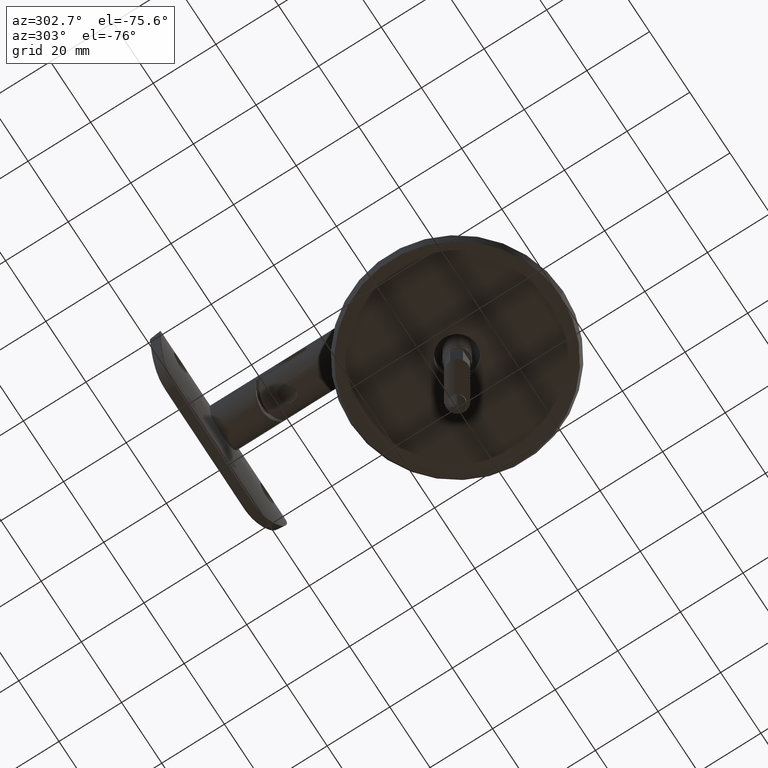
[diagram: clean part render]
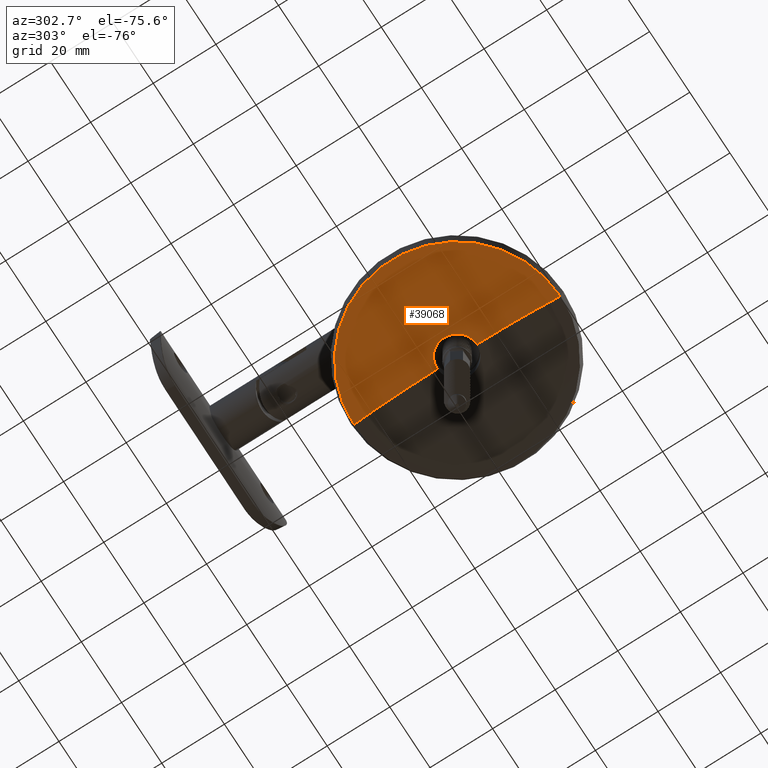
[diagram: same view with one face highlighted and labeled with its STEP entity id]
A machine part, auxiliary view. The second image highlights one B-rep face of the part: STEP entity #39068.
In plain terms, the highlighted toroidal blend (fillet) surface has major radius 6.25 mm and minor (blend) radius 91.8679 mm.
Its self-contained STEP definition (entity closure, byte-faithful):
#534 = DIRECTION ( 'NONE',  ( 0.000000000000000000, 0.000000000000000000, -1.000000000000000000 ) ) ;
#828 = DIRECTION ( 'NONE',  ( -1.224646799147353207E-16, 0.000000000000000000, -1.000000000000000000 ) ) ;
#911 = EDGE_CURVE ( 'NONE', #19195, #3617, #14880, .T. ) ;
#1289 = CARTESIAN_POINT ( 'NONE',  ( 7.654042494670957606E-16, -87.86785809411674109, 6.250000000000000000 ) ) ;
#1321 = DIRECTION ( 'NONE',  ( 0.000000000000000000, 0.000000000000000000, -1.000000000000000000 ) ) ;
#2730 = FACE_OUTER_BOUND ( 'NONE', #36809, .T. ) ;
#3617 = VERTEX_POINT ( 'NONE', #3840 ) ;
#3840 = CARTESIAN_POINT ( 'NONE',  ( 4.037360724133361810E-15, 0.02910292739445596855, 32.96755217050606035 ) ) ;
#4831 = DIRECTION ( 'NONE',  ( 0.000000000000000000, 0.000000000000000000, 1.000000000000000000 ) ) ;
#5444 = CIRCLE ( 'NONE', #28528, 32.96755217050610298 ) ;
#5689 = ORIENTED_EDGE ( 'NONE', *, *, #39232, .T. ) ;
#6911 = AXIS2_PLACEMENT_3D ( 'NONE', #37132, #36645, #1321 ) ;
#7618 = CARTESIAN_POINT ( 'NONE',  ( 2.407499062780754752E-15, 3.999945692343423342, 6.349891266359785291 ) ) ;
#7684 = CIRCLE ( 'NONE', #6911, 6.349891266359784403 ) ;
#9305 = AXIS2_PLACEMENT_3D ( 'NONE', #32185, #15077, #21444 ) ;
#12250 = AXIS2_PLACEMENT_3D ( 'NONE', #1289, #25415, #828 ) ;
#13221 = ORIENTED_EDGE ( 'NONE', *, *, #911, .T. ) ;
#14880 = CIRCLE ( 'NONE', #12250, 91.86785809411672687 ) ;
#15077 = DIRECTION ( 'NONE',  ( -0.000000000000000000, -1.000000000000000000, -0.000000000000000000 ) ) ;
#16587 = EDGE_CURVE ( 'NONE', #3617, #39326, #5444, .T. ) ;
#19195 = VERTEX_POINT ( 'NONE', #7618 ) ;
#21444 = DIRECTION ( 'NONE',  ( 0.000000000000000000, 0.000000000000000000, -1.000000000000000000 ) ) ;
#22449 = DIRECTION ( 'NONE',  ( -1.000000000000000000, 0.000000000000000000, 0.000000000000000000 ) ) ;
#24126 = AXIS2_PLACEMENT_3D ( 'NONE', #43734, #22449, #4831 ) ;
#25415 = DIRECTION ( 'NONE',  ( 1.000000000000000000, 0.000000000000000000, -1.224646799147353207E-16 ) ) ;
#28528 = AXIS2_PLACEMENT_3D ( 'NONE', #32322, #28596, #534 ) ;
#28596 = DIRECTION ( 'NONE',  ( -0.000000000000000000, -1.000000000000000000, -0.000000000000000000 ) ) ;
#29372 = CARTESIAN_POINT ( 'NONE',  ( 0.000000000000000000, 0.02910292739445596855, -32.96755217050606035 ) ) ;
#30779 = VERTEX_POINT ( 'NONE', #38401 ) ;
#32185 = CARTESIAN_POINT ( 'NONE',  ( 0.000000000000000000, -87.86785809411674109, 0.000000000000000000 ) ) ;
#32322 = CARTESIAN_POINT ( 'NONE',  ( 0.000000000000000000, 0.02910292739445596855, 0.000000000000000000 ) ) ;
#34898 = TOROIDAL_SURFACE ( 'NONE', #9305, 6.250000000000000000, 91.86785809411672687 ) ;
#35671 = ORIENTED_EDGE ( 'NONE', *, *, #38062, .F. ) ;
#36558 = CIRCLE ( 'NONE', #24126, 91.86785809411672687 ) ;
#36645 = DIRECTION ( 'NONE',  ( 0.000000000000000000, 1.000000000000000000, 0.000000000000000000 ) ) ;
#36809 = EDGE_LOOP ( 'NONE', ( #5689, #13221, #39649, #35671 ) ) ;
#37132 = CARTESIAN_POINT ( 'NONE',  ( 0.000000000000000000, 3.999945692343423342, 0.000000000000000000 ) ) ;
#38062 = EDGE_CURVE ( 'NONE', #30779, #39326, #36558, .T. ) ;
#38401 = CARTESIAN_POINT ( 'NONE',  ( 0.000000000000000000, 3.999945692343423342, -6.349891266359784403 ) ) ;
#39068 = ADVANCED_FACE ( 'NONE', ( #2730 ), #34898, .F. ) ;
#39232 = EDGE_CURVE ( 'NONE', #30779, #19195, #7684, .T. ) ;
#39326 = VERTEX_POINT ( 'NONE', #29372 ) ;
#39649 = ORIENTED_EDGE ( 'NONE', *, *, #16587, .T. ) ;
#43734 = CARTESIAN_POINT ( 'NONE',  ( 0.000000000000000000, -87.86785809411674109, -6.250000000000000000 ) ) ;